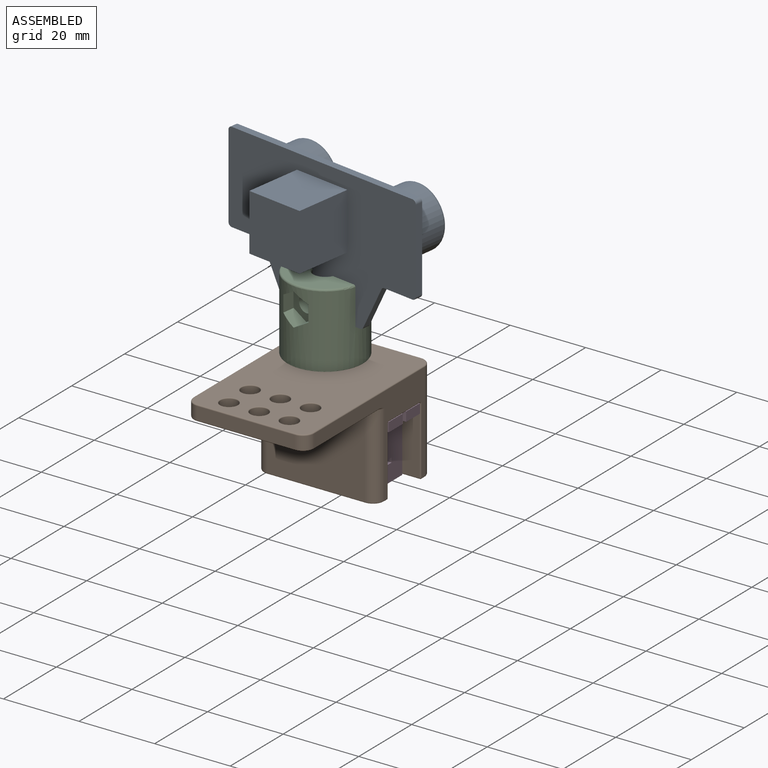
[diagram: assembled view]
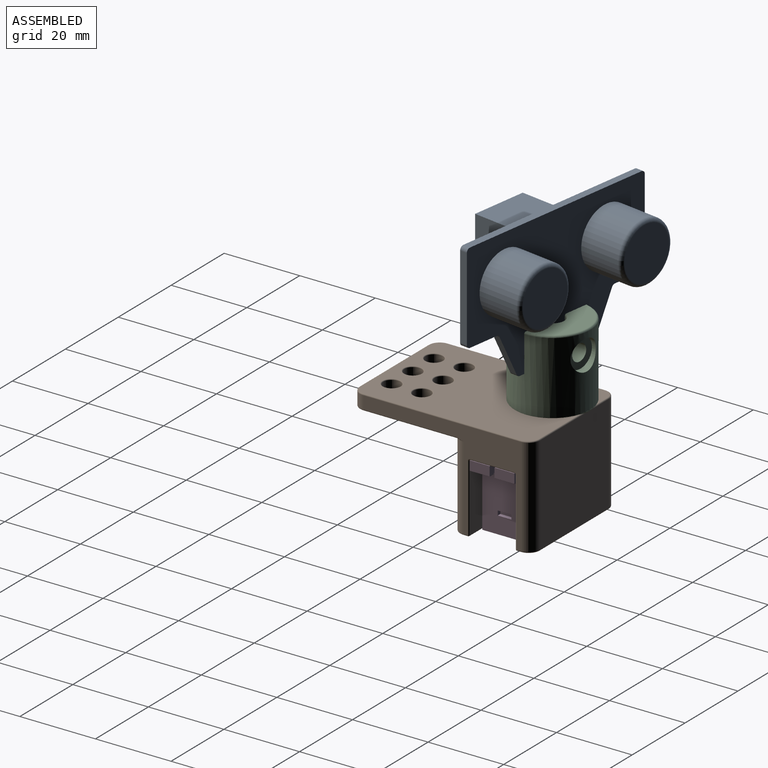
[diagram: assembled view, second angle]
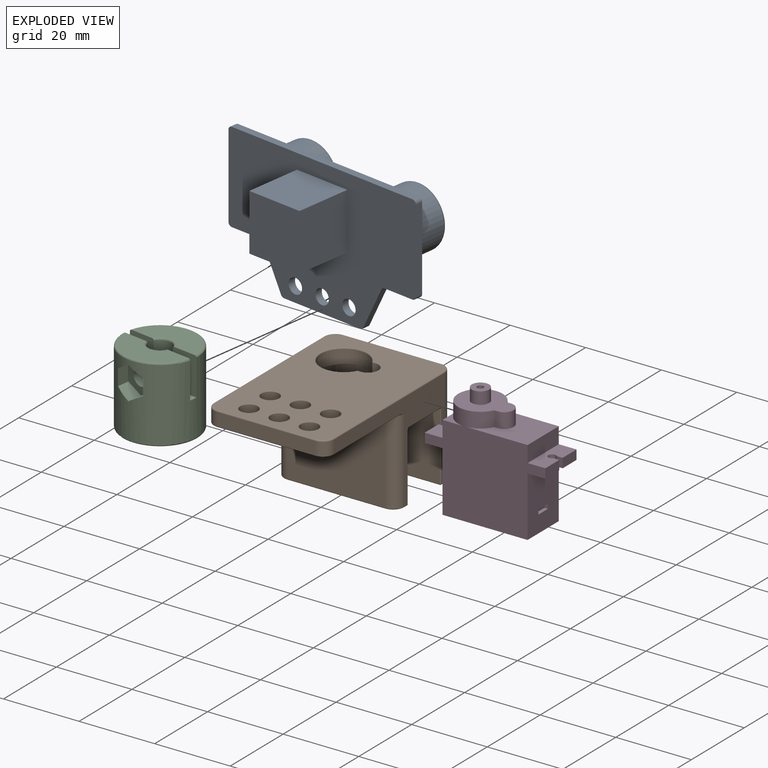
[diagram: exploded view]
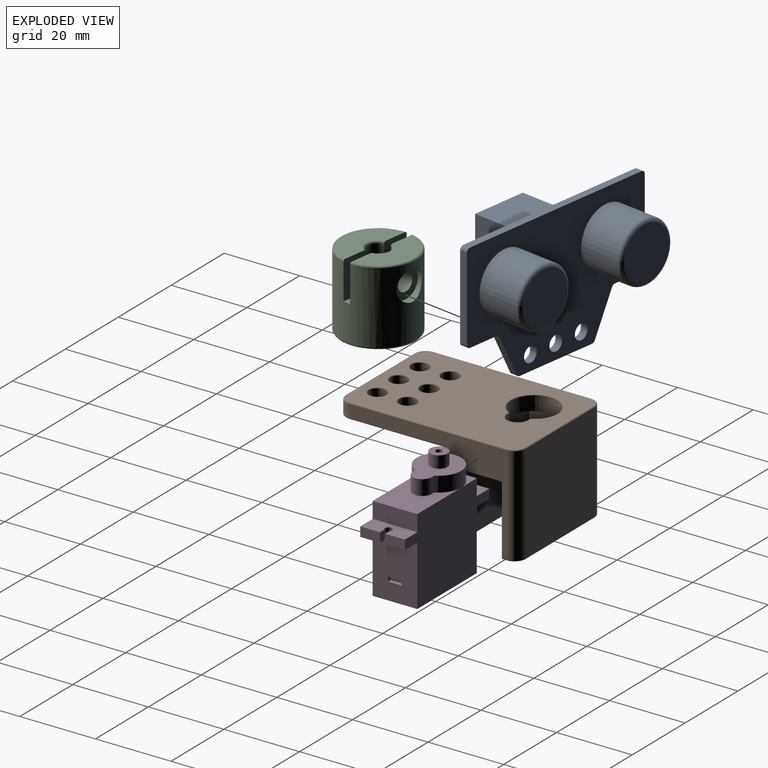
[diagram: exploded view, second angle]
ASSEMBLY  parts=4 mates=2
PART A: 32 faces, bbox 56x29x36 mm
  f0: plane 56x36mm, normal (0,1,0), area 1440.4mm2, adj f1,f2,f3,f4,f5,f6,f7,f8
  f1: plane 54x2mm, normal (0,0,1), area 108mm2, adj f0,f12,f19,f26
  f2: plane 22x2mm, normal (-1,0,0), area 44mm2, adj f0,f12,f19,f20
  f3: plane 8.38x2mm, normal (0,0,-1), area 16.8mm2, adj f0,f12,f20,f21
  f4: plane 10.89x5.45mm, normal (-0.89,0,-0.45), area 24.4mm2, adj f0,f12,f21,f22
  f5: plane 22.76x2mm, normal (0,0,-1), area 45.5mm2, adj f0,f12,f22,f23
  f6: plane 10.89x5.45mm, normal (0.89,0,-0.45), area 24.4mm2, adj f0,f12,f23,f24
  f7: plane 8.38x2mm, normal (0,0,-1), area 16.8mm2, adj f0,f12,f24,f25
  f8: cylinder r=2mm len=4mm, axis (0,1,0), area 25.1mm2, adj f0,f12
  f9: cylinder r=2mm len=4mm, axis (0,1,0), area 25.1mm2, adj f0,f12
  f10: plane 22x2mm, normal (1,0,0), area 44mm2, adj f0,f12,f25,f26
  f11: cylinder r=2mm len=4mm, axis (0,1,0), area 25.1mm2, adj f0,f12
  f12: plane 56x36mm, normal (0,-1,0), area 1263.3mm2, adj f1,f2,f3,f4,f5,f6,f7,f8
  f13: cylinder r=8mm len=16mm, axis (0,1,0), area 552.9mm2, adj f12,f18
  f14: plane 14x14mm, normal (0,-1,0), area 153.9mm2, adj f18
  f15: cylinder r=8mm len=16mm, axis (0,1,0), area 552.9mm2, adj f12,f17
  f16: plane 14x14mm, normal (0,-1,0), area 153.9mm2, adj f17
  f17: torus R=7mm, axis (0,-1,0), area 75.4mm2, adj f15,f16
  f18: torus R=7mm, axis (0,-1,0), area 75.4mm2, adj f13,f14
  f19: cylinder r=1mm len=2mm, axis (0,1,0), area 3.1mm2, adj f0,f1,f2,f12
  f20: cylinder r=1mm len=2mm, axis (0,-1,0), area 3.1mm2, adj f0,f2,f3,f12
  f21: cylinder r=1mm len=2mm, axis (0,-1,0), area 2.2mm2, adj f0,f3,f4,f12
  f22: cylinder r=1mm len=2mm, axis (0,1,0), area 2.2mm2, adj f0,f4,f5,f12
  f23: cylinder r=1mm len=2mm, axis (0,-1,0), area 2.2mm2, adj f0,f5,f6,f12
  f24: cylinder r=1mm len=2mm, axis (0,-1,0), area 2.2mm2, adj f0,f6,f7,f12
  f25: cylinder r=1mm len=2mm, axis (0,-1,0), area 3.1mm2, adj f0,f7,f10,f12
  f26: cylinder r=1mm len=2mm, axis (0,-1,0), area 3.1mm2, adj f0,f1,f10,f12
  f27: plane 15x15mm, normal (0,0,1), area 225mm2, adj f0,f28,f30,f31
  f28: plane 15x15mm, normal (-1,0,0), area 225mm2, adj f0,f27,f29,f31
  f29: plane 15x15mm, normal (0,0,-1), area 225mm2, adj f0,f28,f30,f31
  f30: plane 15x15mm, normal (1,0,0), area 225mm2, adj f0,f27,f29,f31
  f31: plane 15x15mm, normal (0,1,0), area 225mm2, adj f27,f28,f29,f30
PART B: 129 faces, bbox 33.5x48.2x26.7 mm
  f0: plane 31.3x22.4mm, normal (0,1,0), area 662.6mm2, adj f1,f2,f55,f56,f81,f82,f86,f87
  f1: plane 12.3x4.82mm, normal (0,0,-1), area 15.8mm2, adj f0,f23,f29,f57,f81,f89
  f2: plane 15.52x12.3mm, normal (0,0,-1), area 132.6mm2, adj f0,f23,f33,f41,f46,f49,f51,f54
  f3: plane 41.7x26.1mm, normal (1,0,0), area 250mm2, adj f4,f20,f27,f71,f92,f102,f105,f108
  f4: cylinder r=3mm len=26.1mm, axis (0,0,-1), area 123mm2, adj f3,f5,f73,f117
  f5: plane 26.1x25.9mm, normal (0,1,0), area 676mm2, adj f4,f6,f75,f115
  f6: cylinder r=3mm len=26.1mm, axis (0,0,-1), area 123mm2, adj f5,f7,f77,f112
  f7: plane 41.7x26.1mm, normal (-1,0,0), area 250mm2, adj f6,f8,f25,f78,f80,f86,f93,f97
  f8: cylinder r=3mm len=3.4mm, axis (0,0,-1), area 16mm2, adj f7,f9,f76,f126
  f9: plane 25.9x3.4mm, normal (0,-1,0), area 88.1mm2, adj f8,f20,f74,f124
  f10: plane 3.6x0.68mm, normal (0,-1,0), area 2.4mm2, adj f11,f40,f42,f46
  f11: cylinder r=2.75mm len=5.5mm, axis (0,0,-1), area 31.1mm2, adj f10,f12,f44,f49
  f12: plane 3.6x0.68mm, normal (0,1,0), area 2.4mm2, adj f11,f47,f51,f52
  f13: cylinder r=2.3mm len=4.6mm, axis (0,0,-1), area 52mm2, adj f59,f65
  f14: cylinder r=2.3mm len=4.6mm, axis (0,0,-1), area 52mm2, adj f60,f66
  f15: cylinder r=2.3mm len=4.6mm, axis (0,0,-1), area 52mm2, adj f61,f67
  f16: cylinder r=2.3mm len=4.6mm, axis (0,0,-1), area 52mm2, adj f62,f68
  f17: cylinder r=2.3mm len=4.6mm, axis (0,0,-1), area 52mm2, adj f63,f69
  f18: cylinder r=2.3mm len=4.6mm, axis (0,0,-1), area 52mm2, adj f64,f70
  f19: cylinder r=6.15mm len=12.3mm, axis (0,0,-1), area 118.3mm2, adj f39,f41,f42,f48,f52,f54,f55,f56
  f20: cylinder r=3mm len=3.4mm, axis (0,0,-1), area 16mm2, adj f3,f9,f72,f122
  f21: plane 47.1x31.3mm, normal (0,0,1), area 1208.7mm2, adj f40,f44,f47,f48,f65,f66,f67,f68
  f22: plane 31.3x27.3mm, normal (0,0,-1), area 692mm2, adj f59,f60,f61,f62,f63,f64,f120,f121
  f23: plane 31.3x22.4mm, normal (0,-1,0), area 662.6mm2, adj f1,f2,f39,f58,f89,f94,f98,f99
  f24: plane 31.3x3.85mm, normal (0,0,-1), area 117.4mm2, adj f109,f112,f113,f115,f117,f118
  f25: cylinder r=3mm len=22.1mm, axis (0,0,1), area 104.1mm2, adj f7,f26,f79,f125
  f26: plane 25.9x22.1mm, normal (0,-1,0), area 572.4mm2, adj f25,f27,f83,f123
  f27: cylinder r=3mm len=22.1mm, axis (0,0,1), area 104.1mm2, adj f3,f26,f85,f121
  f28: plane 31.3x3.85mm, normal (0,0,-1), area 117.4mm2, adj f79,f80,f83,f85,f91,f92
  f29: plane 11.7x4mm, normal (1,0,0), area 46.8mm2, adj f1,f81,f88,f89
  f30: cylinder r=0.75mm len=4.1mm, axis (0,0,1), area 19.3mm2, adj f32,f37
  f31: plane 11.7x3.6mm, normal (0,0,-1), area 39.3mm2, adj f37,f87,f88,f97,f98
  f32: plane 1.5x1.5mm, normal (0,0,-1), area 1.8mm2, adj f30
  f33: plane 11.7x4mm, normal (-1,0,0), area 46.8mm2, adj f2,f90,f99,f100
  f34: cylinder r=0.75mm len=4.1mm, axis (0,0,1), area 19.3mm2, adj f36,f38
  f35: plane 11.7x3.6mm, normal (0,0,-1), area 39.3mm2, adj f38,f100,f101,f107,f108
  f36: plane 1.5x1.5mm, normal (0,0,-1), area 1.8mm2, adj f34
  f37: torus R=0.95mm, axis (0,0,-1), area 1.6mm2, adj f30,f31
  f38: torus R=0.95mm, axis (0,0,-1), area 1.6mm2, adj f34,f35
  f39: bspline ~1.63x0.21mm, area 0.2mm2, adj f19,f23,f41
  f40: cylinder r=0.2mm len=0.68mm, axis (-1,0,0), area 0.2mm2, adj f10,f21,f44,f45
  f41: torus R=6.35mm, axis (0,0,1), area 1.6mm2, adj f2,f19,f39,f43
  f42: cylinder r=0.2mm len=3.6mm, axis (0,0,-1), area 0.8mm2, adj f10,f19,f43,f45
  f43: sphere r=0.2mm, area 0mm2, adj f41,f42,f46
  f44: torus R=2.95mm, axis (0,0,1), area 2.8mm2, adj f11,f21,f40,f47
  f45: sphere r=0.2mm, area 0mm2, adj f40,f42,f48
  f46: cylinder r=0.2mm len=0.68mm, axis (1,0,0), area 0.2mm2, adj f2,f10,f43,f49
  f47: cylinder r=0.2mm len=0.68mm, axis (1,0,0), area 0.2mm2, adj f12,f21,f44,f50
  f48: torus R=6.35mm, axis (0,0,1), area 10.4mm2, adj f19,f21,f45,f50
  f49: torus R=2.95mm, axis (0,0,1), area 2.8mm2, adj f2,f11,f46,f51
  f50: sphere r=0.2mm, area 0mm2, adj f47,f48,f52
  f51: cylinder r=0.2mm len=0.68mm, axis (-1,0,0), area 0.2mm2, adj f2,f12,f49,f53
  f52: cylinder r=0.2mm len=3.6mm, axis (0,0,-1), area 0.8mm2, adj f12,f19,f50,f53
  f53: sphere r=0.2mm, area 0mm2, adj f51,f52,f54
  f54: torus R=6.35mm, axis (0,0,1), area 1.6mm2, adj f2,f19,f53,f55
  f55: bspline ~1.63x0.21mm, area 0.2mm2, adj f0,f19,f54
  f56: bspline ~1.63x0.21mm, area 0.2mm2, adj f0,f19,f57
  f57: torus R=6.35mm, axis (0,0,1), area 5.2mm2, adj f1,f19,f56,f58
  f58: bspline ~1.63x0.21mm, area 0.2mm2, adj f19,f23,f57
  f59: torus R=2.5mm, axis (0,0,1), area 4.7mm2, adj f13,f22
  f60: torus R=2.5mm, axis (0,0,1), area 4.7mm2, adj f14,f22
  f61: torus R=2.5mm, axis (0,0,1), area 4.7mm2, adj f15,f22
  f62: torus R=2.5mm, axis (0,0,1), area 4.7mm2, adj f16,f22
  f63: torus R=2.5mm, axis (0,0,1), area 4.7mm2, adj f17,f22
  f64: torus R=2.5mm, axis (0,0,1), area 4.7mm2, adj f18,f22
  f65: torus R=2.5mm, axis (0,0,1), area 4.7mm2, adj f13,f21
  f66: torus R=2.5mm, axis (0,0,1), area 4.7mm2, adj f14,f21
  f67: torus R=2.5mm, axis (0,0,1), area 4.7mm2, adj f15,f21
  f68: torus R=2.5mm, axis (0,0,1), area 4.7mm2, adj f16,f21
  f69: torus R=2.5mm, axis (0,0,1), area 4.7mm2, adj f17,f21
  f70: torus R=2.5mm, axis (0,0,1), area 4.7mm2, adj f18,f21
  f71: cylinder r=0.3mm len=41.7mm, axis (0,-1,0), area 19.7mm2, adj f3,f21,f72,f73
  f72: torus R=2.7mm, axis (0,0,1), area 2.1mm2, adj f20,f21,f71,f74
  f73: torus R=2.7mm, axis (0,0,1), area 2.1mm2, adj f4,f21,f71,f75
  f74: cylinder r=0.3mm len=25.9mm, axis (-1,0,0), area 12.2mm2, adj f9,f21,f72,f76
  f75: cylinder r=0.3mm len=25.9mm, axis (1,0,0), area 12.2mm2, adj f5,f21,f73,f77
  f76: torus R=2.7mm, axis (0,0,1), area 2.1mm2, adj f8,f21,f74,f78
  f77: torus R=2.7mm, axis (0,0,1), area 2.1mm2, adj f6,f21,f75,f78
  f78: cylinder r=0.3mm len=41.7mm, axis (0,1,0), area 19.7mm2, adj f7,f21,f76,f77
  f79: torus R=2.7mm, axis (0,0,1), area 2.1mm2, adj f25,f28,f80,f83
  f80: cylinder r=0.3mm len=1.15mm, axis (0,-1,0), area 0.5mm2, adj f7,f28,f79,f84
  f81: cylinder r=0.3mm len=4mm, axis (0,0,-1), area 1.9mm2, adj f0,f1,f29,f82
  f82: torus R=0.6mm, axis (0,-1,0), area 0.3mm2, adj f0,f81,f87,f88
  f83: cylinder r=0.3mm len=25.9mm, axis (-1,0,0), area 12.2mm2, adj f26,f28,f79,f85
  f84: sphere r=0.3mm, area 0.1mm2, adj f80,f86,f91
  f85: torus R=2.7mm, axis (0,0,1), area 2.1mm2, adj f27,f28,f83,f92
  f86: cylinder r=0.3mm len=17.8mm, axis (0,0,-1), area 8.4mm2, adj f0,f7,f84,f93
  f87: cylinder r=0.3mm len=3.6mm, axis (1,0,0), area 1.7mm2, adj f0,f31,f82,f93
  f88: cylinder r=0.3mm len=11.7mm, axis (0,1,0), area 5.5mm2, adj f29,f31,f82,f94
  f89: cylinder r=0.3mm len=4mm, axis (0,0,1), area 1.9mm2, adj f1,f23,f29,f94
  f90: cylinder r=0.3mm len=4mm, axis (0,0,-1), area 1.9mm2, adj f0,f2,f33,f95
  f91: cylinder r=0.3mm len=31.3mm, axis (1,0,0), area 14.7mm2, adj f0,f28,f84,f96
  f92: cylinder r=0.3mm len=1.15mm, axis (0,1,0), area 0.5mm2, adj f3,f28,f85,f96
  f93: torus R=0.6mm, axis (-1,0,0), area 0.3mm2, adj f7,f86,f87,f97
  f94: torus R=0.6mm, axis (0,-1,0), area 0.3mm2, adj f23,f88,f89,f98
  f95: torus R=0.6mm, axis (0,-1,0), area 0.3mm2, adj f0,f90,f100,f101
  f96: sphere r=0.3mm, area 0.1mm2, adj f91,f92,f102
  f97: cylinder r=0.3mm len=11.7mm, axis (0,1,0), area 5.5mm2, adj f7,f31,f93,f103
  f98: cylinder r=0.3mm len=3.6mm, axis (-1,0,0), area 1.7mm2, adj f23,f31,f94,f103
  f99: cylinder r=0.3mm len=4mm, axis (0,0,1), area 1.9mm2, adj f2,f23,f33,f104
  f100: cylinder r=0.3mm len=11.7mm, axis (0,-1,0), area 5.5mm2, adj f33,f35,f95,f104
  f101: cylinder r=0.3mm len=3.6mm, axis (1,0,0), area 1.7mm2, adj f0,f35,f95,f105
  f102: cylinder r=0.3mm len=17.8mm, axis (0,0,1), area 8.4mm2, adj f0,f3,f96,f105
  f103: torus R=0.6mm, axis (-1,0,0), area 0.3mm2, adj f7,f97,f98,f106
  f104: torus R=0.6mm, axis (0,-1,0), area 0.3mm2, adj f23,f99,f100,f107
  f105: torus R=0.6mm, axis (-1,0,0), area 0.3mm2, adj f3,f101,f102,f108
  f106: cylinder r=0.3mm len=17.8mm, axis (0,0,1), area 8.4mm2, adj f7,f23,f103,f110
  f107: cylinder r=0.3mm len=3.6mm, axis (-1,0,0), area 1.7mm2, adj f23,f35,f104,f111
  f108: cylinder r=0.3mm len=11.7mm, axis (0,-1,0), area 5.5mm2, adj f3,f35,f105,f111
  f109: cylinder r=0.3mm len=1.15mm, axis (0,-1,0), area 0.5mm2, adj f7,f24,f110,f112
  f110: sphere r=0.3mm, area 0.1mm2, adj f106,f109,f113
  f111: torus R=0.6mm, axis (-1,0,0), area 0.3mm2, adj f3,f107,f108,f114
  f112: torus R=2.7mm, axis (0,0,1), area 2.1mm2, adj f6,f24,f109,f115
  f113: cylinder r=0.3mm len=31.3mm, axis (-1,0,0), area 14.7mm2, adj f23,f24,f110,f116
  f114: cylinder r=0.3mm len=17.8mm, axis (0,0,-1), area 8.4mm2, adj f3,f23,f111,f116
  f115: cylinder r=0.3mm len=25.9mm, axis (-1,0,0), area 12.2mm2, adj f5,f24,f112,f117
  f116: sphere r=0.3mm, area 0.1mm2, adj f113,f114,f118
  f117: torus R=2.7mm, axis (0,0,1), area 2.1mm2, adj f4,f24,f115,f118
  f118: cylinder r=0.3mm len=1.15mm, axis (0,1,0), area 0.5mm2, adj f3,f24,f116,f117
  f119: bspline ~1.98x0.6mm, area 0.4mm2, adj f3,f120,f121
  f120: cylinder r=0.3mm len=24.6mm, axis (0,1,0), area 11.6mm2, adj f3,f22,f119,f122
  f121: torus R=3.3mm, axis (0,0,1), area 1.8mm2, adj f22,f27,f119,f123
  f122: torus R=2.7mm, axis (0,0,1), area 2.1mm2, adj f20,f22,f120,f124
  f123: cylinder r=0.3mm len=25.9mm, axis (1,0,0), area 12.2mm2, adj f22,f26,f121,f125
  f124: cylinder r=0.3mm len=25.9mm, axis (1,0,0), area 12.2mm2, adj f9,f22,f122,f126
  f125: torus R=3.3mm, axis (0,0,1), area 1.8mm2, adj f22,f25,f123,f127
  f126: torus R=2.7mm, axis (0,0,1), area 2.1mm2, adj f8,f22,f124,f128
  f127: bspline ~1.98x0.6mm, area 0.4mm2, adj f7,f125,f128
  f128: cylinder r=0.3mm len=24.6mm, axis (0,-1,0), area 11.6mm2, adj f7,f22,f126,f127
PART C: 32 faces, bbox 21.7x21.7x20.1 mm
  f0: cylinder r=2.2mm len=4.4mm, axis (0,1,0), area 47.8mm2, adj f2,f28
  f1: cylinder r=10mm len=20mm, axis (0,0,-1), area 1054.5mm2, adj f3,f4,f5,f9,f10,f11,f18,f19
  f2: cylinder r=3mm len=14.5mm, axis (0,0,1), area 201.5mm2, adj f0,f3,f4,f5,f9,f10,f11,f12
  f3: plane 10.06x7.18mm, normal (0,-1,0), area 71.1mm2, adj f1,f2,f6,f11,f17,f20
  f4: plane 10.06x7.18mm, normal (0,1,0), area 71.1mm2, adj f1,f2,f7,f11,f16,f18
  f5: plane 7.17x2mm, normal (0,0,1), area 14.1mm2, adj f1,f2,f9,f10
  f6: plane 18.89x8.5mm, normal (0,0,1), area 110.5mm2, adj f3,f9,f17,f20
  f7: plane 18.89x8.5mm, normal (0,0,1), area 110.5mm2, adj f4,f10,f16,f18
  f8: plane 19x19mm, normal (0,0,-1), area 254.3mm2, adj f19,f31
  f9: plane 10.06x7.18mm, normal (0,-1,0), area 71.1mm2, adj f1,f2,f5,f6,f17,f20
  f10: plane 10.06x7.18mm, normal (0,1,0), area 71.1mm2, adj f1,f2,f5,f7,f16,f18
  f11: plane 7.17x2mm, normal (0,0,1), area 14.1mm2, adj f1,f2,f3,f4
  f12: plane 6x6mm, normal (0,0,1), area 24.5mm2, adj f2,f15
  f13: cylinder r=2.75mm len=5.5mm, axis (0,0,-1), area 50.1mm2, adj f14,f31
  f14: plane 5.5x5.5mm, normal (0,0,-1), area 20mm2, adj f13,f15
  f15: cylinder r=1.1mm len=2.2mm, axis (0,0,-1), area 12.4mm2, adj f12,f14
  f16: torus R=3.5mm, axis (0,0,1), area 6.3mm2, adj f2,f4,f7,f10
  f17: torus R=3.5mm, axis (0,0,1), area 6.3mm2, adj f2,f3,f6,f9
  f18: torus R=9.5mm, axis (0,0,1), area 22.6mm2, adj f1,f4,f7,f10
  f19: torus R=9.5mm, axis (0,0,1), area 48.5mm2, adj f1,f8
  f20: torus R=9.5mm, axis (0,0,1), area 22.6mm2, adj f1,f3,f6,f9
  f21: cylinder r=2.2mm len=5.96mm, axis (0,1,0), area 75.4mm2, adj f2,f30
  f22: plane 4.33x3.27mm, normal (-1,0,0), area 14.2mm2, adj f1,f23,f27,f28
  f23: plane 4.04x3.79mm, normal (-0.5,0,-0.87), area 16.3mm2, adj f1,f22,f24,f28
  f24: plane 4.04x3.79mm, normal (0.5,0,-0.87), area 16.3mm2, adj f1,f23,f25,f28
  f25: plane 4.33x3.27mm, normal (1,0,0), area 14.2mm2, adj f1,f24,f26,f28
  f26: plane 4.04x3.79mm, normal (0.5,0,0.87), area 16.3mm2, adj f1,f25,f27,f28
  f27: plane 4.04x3.79mm, normal (-0.5,0,0.87), area 16.3mm2, adj f1,f22,f26,f28
  f28: plane 8.66x7.5mm, normal (0,-1,0), area 33.5mm2, adj f0,f22,f23,f24,f25,f26,f27
  f29: cylinder r=4mm len=8mm, axis (0,-1,0), area 39.9mm2, adj f1,f30
  f30: plane 8x8mm, normal (0,1,0), area 35.1mm2, adj f21,f29
  f31: torus R=3.05mm, axis (0,0,1), area 8.5mm2, adj f8,f13
PART D: 38 faces, bbox 31.9x11.8x29.9 mm
  f0: plane 15.9x11.8mm, normal (1,0,0), area 183.3mm2, adj f6,f11,f12,f20,f33,f34,f35,f36
  f1: plane 16.6x11.8mm, normal (0,0,1), area 128.5mm2, adj f11,f12,f17,f24,f25,f26,f27
  f2: plane 5.9x5.9mm, normal (0,0,1), area 7.5mm2, adj f7,f12,f24
  f3: plane 5.9x5.9mm, normal (0,0,1), area 7.5mm2, adj f7,f11,f24
  f4: plane 5.25x2.5mm, normal (-1,0,0), area 13.1mm2, adj f8,f10,f11,f13
  f5: plane 15.9x11.8mm, normal (-1,0,0), area 187.6mm2, adj f6,f10,f11,f12
  f6: plane 22.5x11.8mm, normal (0,0,-1), area 265.5mm2, adj f0,f5,f11,f12
  f7: plane 11.8x4.3mm, normal (-1,0,0), area 50.7mm2, adj f2,f3,f8,f11,f12
  f8: plane 11.8x4.7mm, normal (0,0,1), area 50.5mm2, adj f4,f7,f9,f11,f12,f13,f14,f15
  f9: plane 5.25x2.5mm, normal (-1,0,0), area 13.1mm2, adj f8,f10,f12,f14
  f10: plane 11.8x4.7mm, normal (0,0,-1), area 50.5mm2, adj f4,f5,f9,f11,f12,f13,f14,f15
  f11: plane 31.9x22.7mm, normal (0,-1,0), area 534.2mm2, adj f0,f1,f3,f4,f5,f6,f7,f8
  f12: plane 31.9x22.7mm, normal (0,1,0), area 534.2mm2, adj f0,f1,f2,f5,f6,f7,f8,f9
  f13: plane 2.5x1.54mm, normal (0,1,0), area 3.9mm2, adj f4,f8,f10,f15
  f14: plane 2.5x1.54mm, normal (0,-1,0), area 3.9mm2, adj f8,f9,f10,f15
  f15: cylinder r=1mm len=2.5mm, axis (0,0,1), area 12.2mm2, adj f8,f10,f13,f14
  f16: plane 5.25x2.5mm, normal (1,0,0), area 13.1mm2, adj f11,f18,f20,f21
  f17: plane 11.8x4.3mm, normal (1,0,0), area 50.7mm2, adj f1,f11,f12,f18
  f18: plane 11.8x4.7mm, normal (0,0,1), area 50.5mm2, adj f11,f12,f16,f17,f19,f21,f22,f23
  f19: plane 5.25x2.5mm, normal (1,0,0), area 13.1mm2, adj f12,f18,f20,f22
  f20: plane 11.8x4.7mm, normal (0,0,-1), area 50.5mm2, adj f0,f11,f12,f16,f19,f21,f22,f23
  f21: plane 2.5x1.54mm, normal (0,1,0), area 3.9mm2, adj f16,f18,f20,f23
  f22: plane 2.5x1.54mm, normal (0,-1,0), area 3.9mm2, adj f18,f19,f20,f23
  f23: cylinder r=1mm len=2.5mm, axis (0,0,1), area 12.2mm2, adj f18,f20,f21,f22
  f24: cylinder r=5.9mm len=11.8mm, axis (0,0,-1), area 127.6mm2, adj f1,f2,f3,f25,f27,f28
  f25: plane 4x0.96mm, normal (0,-1,0), area 3.8mm2, adj f1,f24,f26,f28
  f26: cylinder r=2.5mm len=5mm, axis (0,0,-1), area 31.4mm2, adj f1,f25,f27,f28
  f27: plane 4x0.96mm, normal (0,1,0), area 3.8mm2, adj f1,f24,f26,f28
  f28: plane 14.7x11.8mm, normal (0,0,1), area 105.5mm2, adj f24,f25,f26,f27,f30
  f29: cylinder r=0.85mm len=3.2mm, axis (0,0,-1), area 17.1mm2, adj f31,f32
  f30: cylinder r=2.3mm len=4.6mm, axis (0,0,-1), area 46.2mm2, adj f28,f31
  f31: plane 4.6x4.6mm, normal (0,0,1), area 14.3mm2, adj f29,f30
  f32: plane 1.7x1.7mm, normal (0,0,1), area 2.3mm2, adj f29
  f33: plane 1.2x1mm, normal (0,1,0), area 1.2mm2, adj f0,f34,f36,f37
  f34: plane 3.6x1mm, normal (0,0,1), area 3.6mm2, adj f0,f33,f35,f37
  f35: plane 1.2x1mm, normal (0,-1,0), area 1.2mm2, adj f0,f34,f36,f37
  f36: plane 3.6x1mm, normal (0,0,-1), area 3.6mm2, adj f0,f33,f35,f37
  f37: plane 3.6x1.2mm, normal (1,0,0), area 4.3mm2, adj f33,f34,f35,f36
PLACE A rot(axis=(0,0,1),171.5deg) t=(37.55,-9.23,55.22)mm
PLACE B t=(4.1,-11.12,29.6)mm
PLACE C rot(axis=(0,0,-1),8.5deg) t=(10,-4.09,33.22)mm
PLACE D t=(4.35,0.93,6.9)mm fixed
MATE slider D.f24 <-> B.f19  axis (0,0,1) through (10.25,-4.97,33.6)mm
MATE slider C.f0 <-> A.f9  axis (0.15,0.99,0) through (11.19,3.82,47.22)mm
